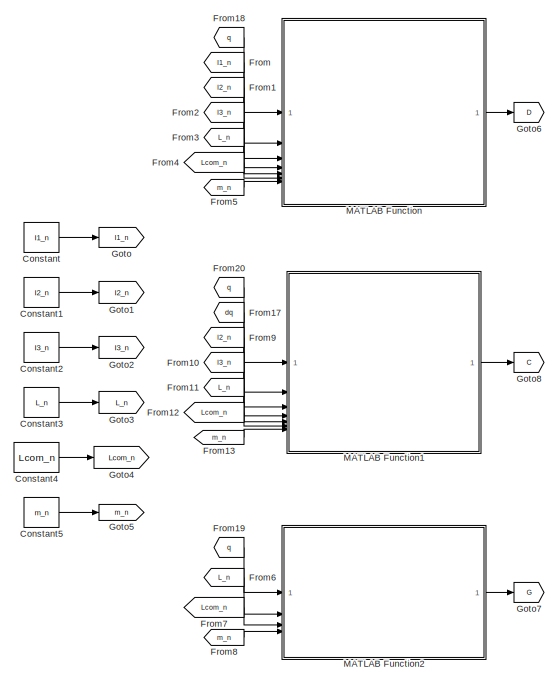
[diagram: root canvas - part 1/3, left side, full height]
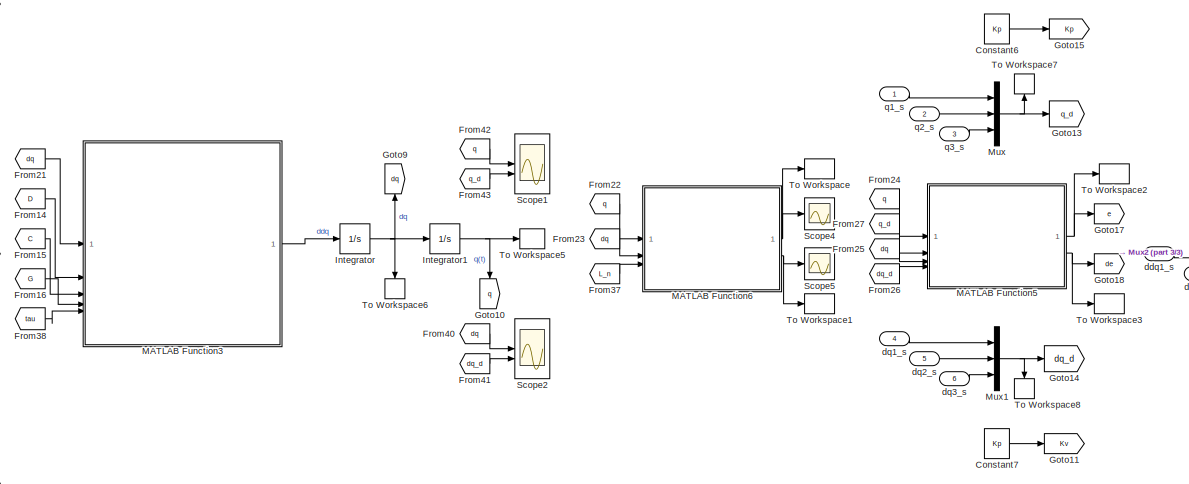
[diagram: root canvas - part 2/3, central region]
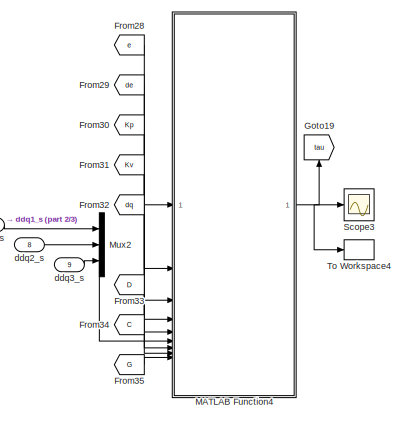
[diagram: root canvas - part 3/3, middle right region]
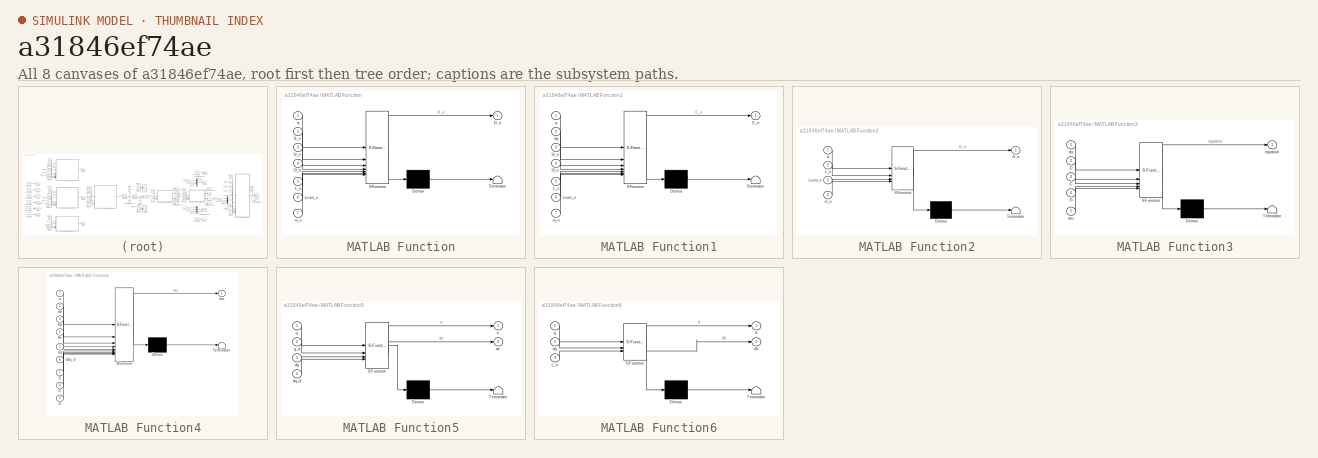
[diagram: thumbnail index - all 8 canvases of the model, root first then tree order]
MODEL slx_a31846ef74ae
KIND model
CONFIG AbsTol = auto
CONFIG EnableMultiTasking = off
CONFIG FixedStep = t / k
CONFIG MaxStep = auto
CONFIG MinStep = auto
CONFIG RelTol = auto
CONFIG SampleTimeConstraint = Unconstrained
CONFIG SolverName = VariableStepAuto
CONFIG StartTime = 0.0
CONFIG StopTime = t
BLOCK [Constant] Constant
  Value = I1_n
BLOCK [Constant] Constant1
  Value = I2_n
BLOCK [Constant] Constant2
  Value = I3_n
BLOCK [Constant] Constant3
  Value = L_n
BLOCK [Constant] Constant4
  Value = Lcom_n
BLOCK [Constant] Constant5
  Value = m_n
BLOCK [Constant] Constant6
  Value = Kp
BLOCK [Constant] Constant7
  Value = Kp
BLOCK [From] From
  GotoTag = I1_n
BLOCK [From] From1
  GotoTag = I2_n
BLOCK [From] From10
  GotoTag = I3_n
BLOCK [From] From11
  GotoTag = L_n
BLOCK [From] From12
  GotoTag = Lcom_n
BLOCK [From] From13
  GotoTag = m_n
BLOCK [From] From14
  GotoTag = D
BLOCK [From] From15
  GotoTag = C
BLOCK [From] From16
  GotoTag = G
BLOCK [From] From17
  GotoTag = dq
BLOCK [From] From18
  GotoTag = q
BLOCK [From] From19
  GotoTag = q
BLOCK [From] From2
  GotoTag = I3_n
BLOCK [From] From20
  GotoTag = q
BLOCK [From] From21
  GotoTag = dq
BLOCK [From] From22
  GotoTag = q
BLOCK [From] From23
  GotoTag = dq
BLOCK [From] From24
  GotoTag = q
BLOCK [From] From25
  GotoTag = dq
BLOCK [From] From26
  GotoTag = dq_d
BLOCK [From] From27
  GotoTag = q_d
BLOCK [From] From28
  GotoTag = e
BLOCK [From] From29
  GotoTag = de
BLOCK [From] From3
  GotoTag = L_n
BLOCK [From] From30
  GotoTag = Kp
BLOCK [From] From31
  GotoTag = Kv
BLOCK [From] From32
  GotoTag = dq
BLOCK [From] From33
  GotoTag = D
BLOCK [From] From34
  GotoTag = C
BLOCK [From] From35
  GotoTag = G
BLOCK [From] From37
  GotoTag = L_n
BLOCK [From] From38
  GotoTag = tau
BLOCK [From] From4
  GotoTag = Lcom_n
BLOCK [From] From40
  GotoTag = dq
BLOCK [From] From41
  GotoTag = dq_d
BLOCK [From] From42
  GotoTag = q
BLOCK [From] From43
  GotoTag = q_d
BLOCK [From] From5
  GotoTag = m_n
BLOCK [From] From6
  GotoTag = L_n
BLOCK [From] From7
  GotoTag = Lcom_n
BLOCK [From] From8
  GotoTag = m_n
BLOCK [From] From9
  GotoTag = I2_n
BLOCK [Goto] Goto
  GotoTag = I1_n
BLOCK [Goto] Goto1
  GotoTag = I2_n
BLOCK [Goto] Goto10
  GotoTag = q
  NameLocation = left
BLOCK [Goto] Goto11
  GotoTag = Kv
BLOCK [Goto] Goto13
  GotoTag = q_d
BLOCK [Goto] Goto14
  GotoTag = dq_d
BLOCK [Goto] Goto15
  GotoTag = Kp
BLOCK [Goto] Goto17
  GotoTag = e
BLOCK [Goto] Goto18
  GotoTag = de
BLOCK [Goto] Goto19
  GotoTag = tau
  NameLocation = right
BLOCK [Goto] Goto2
  GotoTag = I3_n
BLOCK [Goto] Goto3
  GotoTag = L_n
BLOCK [Goto] Goto4
  GotoTag = Lcom_n
BLOCK [Goto] Goto5
  GotoTag = m_n
BLOCK [Goto] Goto6
  GotoTag = D
BLOCK [Goto] Goto7
  GotoTag = G
BLOCK [Goto] Goto8
  GotoTag = C
BLOCK [Goto] Goto9
  GotoTag = dq
  NameLocation = right
BLOCK [Integrator] Integrator
  InitialCondition = dq_0
BLOCK [Integrator] Integrator1
  InitialCondition = q_0
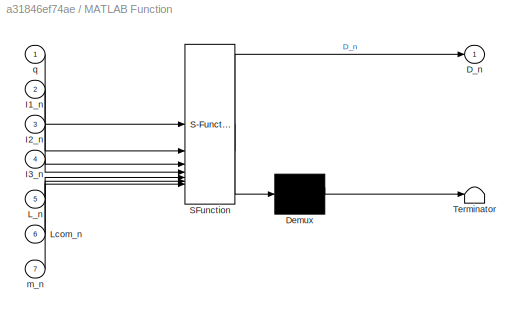
BLOCK [SubSystem] MATLAB Function
  ErrorFcn = Stateflow.Translate.translate
  PermitHierarchicalResolution = ExplicitOnly
  SFBlockType = MATLAB Function
  TreatAsAtomicUnit = on
BLOCK [Demux] MATLAB Function/ Demux 
  Outputs = 1
BLOCK [S-Function] MATLAB Function/ SFunction 
  EnableBusSupport = on
  FunctionName = sf_sfun
  PortCounts = [7 2]
  SFcnIsStateOwnerBlock = off
  SFunctionDeploymentMode = off
  Tag = Stateflow S-Function 2
BLOCK [Terminator] MATLAB Function/ Terminator 
BLOCK [Outport] MATLAB Function/D_n
BLOCK [Inport] MATLAB Function/I1_n
  Port = 2
BLOCK [Inport] MATLAB Function/I2_n
  Port = 3
BLOCK [Inport] MATLAB Function/I3_n
  Port = 4
BLOCK [Inport] MATLAB Function/L_n
  Port = 5
BLOCK [Inport] MATLAB Function/Lcom_n
  Port = 6
BLOCK [Inport] MATLAB Function/m_n
  Port = 7
BLOCK [Inport] MATLAB Function/q
BLOCK [SubSystem] MATLAB Function1
  ErrorFcn = Stateflow.Translate.translate
  PermitHierarchicalResolution = ExplicitOnly
  SFBlockType = MATLAB Function
  TreatAsAtomicUnit = on
BLOCK [Demux] MATLAB Function1/ Demux 
  Outputs = 1
BLOCK [S-Function] MATLAB Function1/ SFunction 
  EnableBusSupport = on
  FunctionName = sf_sfun
  PortCounts = [7 2]
  SFcnIsStateOwnerBlock = off
  SFunctionDeploymentMode = off
  Tag = Stateflow S-Function 1
BLOCK [Terminator] MATLAB Function1/ Terminator 
BLOCK [Outport] MATLAB Function1/C_n
BLOCK [Inport] MATLAB Function1/I2_n
  Port = 3
BLOCK [Inport] MATLAB Function1/I3_n
  Port = 4
BLOCK [Inport] MATLAB Function1/L_n
  Port = 5
BLOCK [Inport] MATLAB Function1/Lcom_n
  Port = 6
BLOCK [Inport] MATLAB Function1/dq
  Port = 2
BLOCK [Inport] MATLAB Function1/m_n
  Port = 7
BLOCK [Inport] MATLAB Function1/q
BLOCK [SubSystem] MATLAB Function2
  ErrorFcn = Stateflow.Translate.translate
  PermitHierarchicalResolution = ExplicitOnly
  SFBlockType = MATLAB Function
  TreatAsAtomicUnit = on
BLOCK [Demux] MATLAB Function2/ Demux 
  Outputs = 1
BLOCK [S-Function] MATLAB Function2/ SFunction 
  EnableBusSupport = on
  FunctionName = sf_sfun
  PortCounts = [4 2]
  SFcnIsStateOwnerBlock = off
  SFunctionDeploymentMode = off
  Tag = Stateflow S-Function 3
BLOCK [Terminator] MATLAB Function2/ Terminator 
BLOCK [Outport] MATLAB Function2/G_n
BLOCK [Inport] MATLAB Function2/L_n
  Port = 2
BLOCK [Inport] MATLAB Function2/Lcom_n
  Port = 3
BLOCK [Inport] MATLAB Function2/m_n
  Port = 4
BLOCK [Inport] MATLAB Function2/q
BLOCK [SubSystem] MATLAB Function3
  ErrorFcn = Stateflow.Translate.translate
  PermitHierarchicalResolution = ExplicitOnly
  SFBlockType = MATLAB Function
  TreatAsAtomicUnit = on
BLOCK [Demux] MATLAB Function3/ Demux 
  Outputs = 1
BLOCK [S-Function] MATLAB Function3/ SFunction 
  EnableBusSupport = on
  FunctionName = sf_sfun
  PortCounts = [5 2]
  SFcnIsStateOwnerBlock = off
  SFunctionDeploymentMode = off
  Tag = Stateflow S-Function 4
BLOCK [Terminator] MATLAB Function3/ Terminator 
BLOCK [Inport] MATLAB Function3/C
  Port = 3
BLOCK [Inport] MATLAB Function3/D
  Port = 2
BLOCK [Inport] MATLAB Function3/G
  Port = 4
BLOCK [Inport] MATLAB Function3/dq
BLOCK [Outport] MATLAB Function3/equation
BLOCK [Inport] MATLAB Function3/tau
  Port = 5
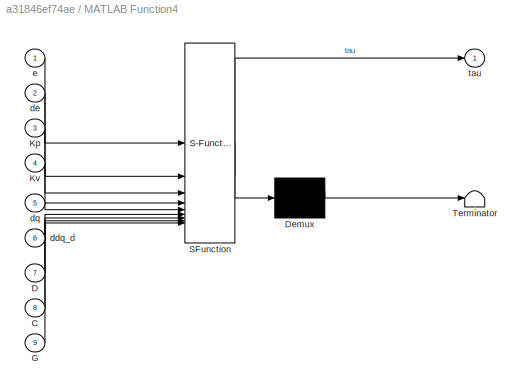
BLOCK [SubSystem] MATLAB Function4
  ErrorFcn = Stateflow.Translate.translate
  PermitHierarchicalResolution = ExplicitOnly
  SFBlockType = MATLAB Function
  TreatAsAtomicUnit = on
BLOCK [Demux] MATLAB Function4/ Demux 
  Outputs = 1
BLOCK [S-Function] MATLAB Function4/ SFunction 
  EnableBusSupport = on
  FunctionName = sf_sfun
  PortCounts = [9 2]
  SFcnIsStateOwnerBlock = off
  SFunctionDeploymentMode = off
  Tag = Stateflow S-Function 5
BLOCK [Terminator] MATLAB Function4/ Terminator 
BLOCK [Inport] MATLAB Function4/C
  Port = 8
BLOCK [Inport] MATLAB Function4/D
  Port = 7
BLOCK [Inport] MATLAB Function4/G
  Port = 9
BLOCK [Inport] MATLAB Function4/Kp
  Port = 3
BLOCK [Inport] MATLAB Function4/Kv
  Port = 4
BLOCK [Inport] MATLAB Function4/ddq_d
  Port = 6
BLOCK [Inport] MATLAB Function4/de
  Port = 2
BLOCK [Inport] MATLAB Function4/dq
  Port = 5
BLOCK [Inport] MATLAB Function4/e
BLOCK [Outport] MATLAB Function4/tau
BLOCK [SubSystem] MATLAB Function5
  ErrorFcn = Stateflow.Translate.translate
  PermitHierarchicalResolution = ExplicitOnly
  SFBlockType = MATLAB Function
  TreatAsAtomicUnit = on
BLOCK [Demux] MATLAB Function5/ Demux 
  Outputs = 1
BLOCK [S-Function] MATLAB Function5/ SFunction 
  EnableBusSupport = on
  FunctionName = sf_sfun
  PortCounts = [4 3]
  SFcnIsStateOwnerBlock = off
  SFunctionDeploymentMode = off
  Tag = Stateflow S-Function 6
BLOCK [Terminator] MATLAB Function5/ Terminator 
BLOCK [Outport] MATLAB Function5/de
  Port = 2
BLOCK [Inport] MATLAB Function5/dq
  Port = 3
BLOCK [Inport] MATLAB Function5/dq_d
  Port = 4
BLOCK [Outport] MATLAB Function5/e
BLOCK [Inport] MATLAB Function5/q
BLOCK [Inport] MATLAB Function5/q_d
  Port = 2
BLOCK [SubSystem] MATLAB Function6
  ErrorFcn = Stateflow.Translate.translate
  PermitHierarchicalResolution = ExplicitOnly
  SFBlockType = MATLAB Function
  TreatAsAtomicUnit = on
BLOCK [Demux] MATLAB Function6/ Demux 
  Outputs = 1
BLOCK [S-Function] MATLAB Function6/ SFunction 
  EnableBusSupport = on
  FunctionName = sf_sfun
  PortCounts = [3 3]
  SFcnIsStateOwnerBlock = off
  SFunctionDeploymentMode = off
  Tag = Stateflow S-Function 7
BLOCK [Terminator] MATLAB Function6/ Terminator 
BLOCK [Inport] MATLAB Function6/L_n
  Port = 3
BLOCK [Outport] MATLAB Function6/X
BLOCK [Outport] MATLAB Function6/dX
  Port = 2
BLOCK [Inport] MATLAB Function6/dq
  Port = 2
BLOCK [Inport] MATLAB Function6/q
BLOCK [Mux] Mux
  DisplayOption = bar
  Inputs = 3
BLOCK [Mux] Mux1
  DisplayOption = bar
  Inputs = 3
BLOCK [Mux] Mux2
  DisplayOption = bar
  Inputs = 3
BLOCK [Scope] Scope1
  Floating = off
  NumInputPorts = 2
  ScopeSpecificationString = Simulink.scopes.TimeScopeBlockCfg('CurrentConfiguration', extmgr.ConfigurationSet(extmgr.Configuration('Core','General UI',true,'FigureColor',[1 1 1]),extmgr.Configuration('Core','Source UI',true),extmgr.Configuration('Sources','WiredSimulink',true,'DataLoggingVariableName','ScopeData1'),extmgr.Configuration('Visuals','Time Domain',true,'SerializedDisplays',{struct('MinYLimReal','-3.11518','MaxYLi...<+2101ch>
BLOCK [Scope] Scope2
  Floating = off
  NumInputPorts = 2
  ScopeSpecificationString = Simulink.scopes.TimeScopeBlockCfg('CurrentConfiguration', extmgr.ConfigurationSet(extmgr.Configuration('Core','General UI',true,'FigureColor',[1 1 1]),extmgr.Configuration('Core','Source UI',true),extmgr.Configuration('Sources','WiredSimulink',true,'DataLoggingVariableName','ScopeData2'),extmgr.Configuration('Visuals','Time Domain',true,'SerializedDisplays',{struct('MinYLimReal','-2.9623','MaxYLim...<+2075ch>
BLOCK [Scope] Scope3
  Floating = off
  NumInputPorts = 1
  ScopeSpecificationString = Simulink.scopes.TimeScopeBlockCfg('CurrentConfiguration', extmgr.ConfigurationSet(extmgr.Configuration('Core','General UI',true,'FigureColor',[1 1 1]),extmgr.Configuration('Core','Source UI',true),extmgr.Configuration('Sources','WiredSimulink',true,'DataLoggingVariableName','ScopeData3'),extmgr.Configuration('Visuals','Time Domain',true,'SerializedDisplays',{struct('MinYLimReal','-386.99595','MaxY...<+1845ch>
BLOCK [Scope] Scope4
  Floating = off
  NumInputPorts = 1
  ScopeSpecificationString = Simulink.scopes.TimeScopeBlockCfg('CurrentConfiguration', extmgr.ConfigurationSet(extmgr.Configuration('Core','General UI',true,'FigureColor',[1 1 1]),extmgr.Configuration('Core','Source UI',true),extmgr.Configuration('Sources','WiredSimulink',true,'DataLoggingVariableName','ScopeData1'),extmgr.Configuration('Visuals','Time Domain',true,'SerializedDisplays',{struct('MinYLimReal','-0.74309','MaxYLi...<+1851ch>
BLOCK [Scope] Scope5
  Floating = off
  NumInputPorts = 1
  ScopeSpecificationString = Simulink.scopes.TimeScopeBlockCfg('CurrentConfiguration', extmgr.ConfigurationSet(extmgr.Configuration('Core','General UI',true,'FigureColor',[1 1 1]),extmgr.Configuration('Core','Source UI',true),extmgr.Configuration('Sources','WiredSimulink',true,'DataLoggingVariableName','ScopeData2'),extmgr.Configuration('Visuals','Time Domain',true,'SerializedDisplays',{struct('MinYLimReal','-0.60666','MaxYLi...<+1857ch>
BLOCK [ToWorkspace] To Workspace
  FixptAsFi = on
  MaxDataPoints = inf
  SampleTime = -1
  SaveFormat = Timeseries
  VariableName = X
BLOCK [ToWorkspace] To Workspace1
  FixptAsFi = on
  MaxDataPoints = inf
  SampleTime = -1
  SaveFormat = Timeseries
  VariableName = dX
BLOCK [ToWorkspace] To Workspace2
  FixptAsFi = on
  MaxDataPoints = inf
  SampleTime = -1
  SaveFormat = Timeseries
  VariableName = Error
BLOCK [ToWorkspace] To Workspace3
  FixptAsFi = on
  MaxDataPoints = inf
  SampleTime = -1
  SaveFormat = Timeseries
  VariableName = dError
BLOCK [ToWorkspace] To Workspace4
  FixptAsFi = on
  MaxDataPoints = inf
  SampleTime = -1
  SaveFormat = Timeseries
  VariableName = tau
BLOCK [ToWorkspace] To Workspace5
  FixptAsFi = on
  MaxDataPoints = inf
  SampleTime = -1
  SaveFormat = Timeseries
  VariableName = q
BLOCK [ToWorkspace] To Workspace6
  FixptAsFi = on
  MaxDataPoints = inf
  NameLocation = left
  SampleTime = -1
  SaveFormat = Timeseries
  VariableName = dq
BLOCK [ToWorkspace] To Workspace7
  FixptAsFi = on
  MaxDataPoints = inf
  NameLocation = right
  SampleTime = -1
  SaveFormat = Timeseries
  VariableName = q_d
BLOCK [ToWorkspace] To Workspace8
  FixptAsFi = on
  MaxDataPoints = inf
  NameLocation = left
  SampleTime = -1
  SaveFormat = Timeseries
  VariableName = dq_d
BLOCK [Inport] ddq1_s
  Port = 7
BLOCK [Inport] ddq2_s
  Port = 8
BLOCK [Inport] ddq3_s
  Port = 9
BLOCK [Inport] dq1_s
  Port = 4
BLOCK [Inport] dq2_s
  Port = 5
BLOCK [Inport] dq3_s
  Port = 6
BLOCK [Inport] q1_s
BLOCK [Inport] q2_s
  Port = 2
BLOCK [Inport] q3_s
  Port = 3
LINE Constant1:1 -> Goto1:1
LINE Constant2:1 -> Goto2:1
LINE Constant3:1 -> Goto3:1
LINE Constant4:1 -> Goto4:1
LINE Constant5:1 -> Goto5:1
LINE Constant6:1 -> Goto15:1
LINE Constant7:1 -> Goto11:1
LINE Constant:1 -> Goto:1
LINE From10:1 -> MATLAB Function1:4
LINE From11:1 -> MATLAB Function1:5
LINE From12:1 -> MATLAB Function1:6
LINE From13:1 -> MATLAB Function1:7
LINE From14:1 -> MATLAB Function3:2
LINE From15:1 -> MATLAB Function3:3
LINE From16:1 -> MATLAB Function3:4
LINE From17:1 -> MATLAB Function1:2
LINE From18:1 -> MATLAB Function:1
LINE From19:1 -> MATLAB Function2:1
LINE From1:1 -> MATLAB Function:3
LINE From20:1 -> MATLAB Function1:1
LINE From21:1 -> MATLAB Function3:1
LINE From22:1 -> MATLAB Function6:1
LINE From23:1 -> MATLAB Function6:2
LINE From24:1 -> MATLAB Function5:1
LINE From25:1 -> MATLAB Function5:3
LINE From26:1 -> MATLAB Function5:4
LINE From27:1 -> MATLAB Function5:2
LINE From28:1 -> MATLAB Function4:1
LINE From29:1 -> MATLAB Function4:2
LINE From2:1 -> MATLAB Function:4
LINE From30:1 -> MATLAB Function4:3
LINE From31:1 -> MATLAB Function4:4
LINE From32:1 -> MATLAB Function4:5
LINE From33:1 -> MATLAB Function4:7
LINE From34:1 -> MATLAB Function4:8
LINE From35:1 -> MATLAB Function4:9
LINE From37:1 -> MATLAB Function6:3
LINE From38:1 -> MATLAB Function3:5
LINE From3:1 -> MATLAB Function:5
LINE From40:1 -> Scope2:1
LINE From41:1 -> Scope2:2
LINE From42:1 -> Scope1:1
LINE From43:1 -> Scope1:2
LINE From4:1 -> MATLAB Function:6
LINE From5:1 -> MATLAB Function:7
LINE From6:1 -> MATLAB Function2:2
LINE From7:1 -> MATLAB Function2:3
LINE From8:1 -> MATLAB Function2:4
LINE From9:1 -> MATLAB Function1:3
LINE From:1 -> MATLAB Function:2
NET Integrator1:1 -> Goto10:1, To Workspace5:1
NET Integrator:1 -> Goto9:1, Integrator1:1, To Workspace6:1
LINE MATLAB Function1:1 -> Goto8:1
LINE MATLAB Function2:1 -> Goto7:1
LINE MATLAB Function3:1 -> Integrator:1
NET MATLAB Function4:1 -> Goto19:1, Scope3:1, To Workspace4:1
NET MATLAB Function5:1 -> Goto17:1, To Workspace2:1
NET MATLAB Function5:2 -> Goto18:1, To Workspace3:1
NET MATLAB Function6:1 -> Scope4:1, To Workspace:1
NET MATLAB Function6:2 -> Scope5:1, To Workspace1:1
LINE MATLAB Function:1 -> Goto6:1
NET Mux1:1 -> Goto14:1, To Workspace8:1
LINE Mux2:1 -> MATLAB Function4:6
NET Mux:1 -> Goto13:1, To Workspace7:1
LINE ddq1_s:1 -> Mux2:1
LINE ddq2_s:1 -> Mux2:2
LINE ddq3_s:1 -> Mux2:3
LINE dq1_s:1 -> Mux1:1
LINE dq2_s:1 -> Mux1:2
LINE dq3_s:1 -> Mux1:3
LINE q1_s:1 -> Mux:1
LINE q2_s:1 -> Mux:2
LINE q3_s:1 -> Mux:3
note: NET lines group one-source signal fan-out (src -> all destinations, sorted); 1:1 wires keep LINE
CHART MATLAB Function1 states=1 transitions=1
  STATE_LABEL 'eML_blk_kernel()'
  STATE_LABEL 'SCRIPT:\nfunction C_n = matrixC(q, dq, I2_n, I3_n, L_n, Lcom_n, m_n)\n\n%% Evaluate anonymous function\nC_n = functionC(I2_n(1, 1), ...\n                I3_n(1, 1), ...\n                I2_n(1, 2), ...\n                I3_n(1, 2), ...\n                I2_n(1, 3), ...\n                I3_n(1, 3), ...\n                I2_n(2, 2), ...\n                I3_n(2, 2), ...\n                I2_n(2, 3), ...\n            ...<+185ch>'
CHART MATLAB Function states=1 transitions=1
  STATE_LABEL 'eML_blk_kernel()'
  STATE_LABEL 'SCRIPT:\nfunction D_n = matrixD(q, I1_n, I2_n, I3_n, L_n, Lcom_n, m_n)\n\n%% Evaluate anonymous function\nD_n = functionD(I2_n(1, 1), ...\n                I3_n(1, 1), ...\n                I2_n(1, 2), ...\n                I3_n(1, 2), ...\n                I2_n(1, 3), ...\n                I3_n(1, 3), ...\n                I2_n(2, 2), ...\n                I3_n(2, 2), ...\n                I2_n(2, 3), ...\n          ...<+218ch>'
CHART MATLAB Function2 states=1 transitions=1
  STATE_LABEL 'eML_blk_kernel()'
  STATE_LABEL 'SCRIPT:\nfunction G_n = matrixG(q, L_n, Lcom_n, m_n)\n\n%% Evaluate anonymous function\nG_n = functionG(L_n(2), Lcom_n(2), Lcom_n(3), m_n(2), m_n(3), q(2), q(3));\n'
CHART MATLAB Function3 states=1 transitions=1
  STATE_LABEL 'eML_blk_kernel()'
  STATE_LABEL 'SCRIPT:\nfunction equation = differential(dq, D, C, G, tau)\n\nequation = pinv(D) * (tau - C * dq - G);\n'
CHART MATLAB Function4 states=1 transitions=1
  STATE_LABEL 'eML_blk_kernel()'
  STATE_LABEL 'SCRIPT:\nfunction tau = control(e, de, Kp, Kv, dq, ddq_d, D, C, G)\n\n%% Control function\ntau = D * ((Kp * e) + (Kv * de) + ddq_d) + (C * dq) + G;'
CHART MATLAB Function5 states=1 transitions=1
  STATE_LABEL 'eML_blk_kernel()'
  STATE_LABEL 'SCRIPT:\nfunction [e, de] = error(q, q_d, dq, dq_d)\n\n%% Error calculation\ne = q_d - q;\nde = dq_d - dq;'
CHART MATLAB Function6 states=1 transitions=1
  STATE_LABEL 'eML_blk_kernel()'
  STATE_LABEL 'SCRIPT:\nfunction [X, dX] = forwardK(q, dq, L_n)\n\n%% Parámetros Denavit - Hartenberg\n\nDH = denavitHartenberg(q, L_n);\n\n%% Cinemática Directa\n\n% Parámetros: DH y m (marcos de referencia por analizar)\nH = forwardKinematicsDH(DH, 3 + 1);\n\n% Transforma al vector Axis - Angle\nX = axisAngle(H);\n\n%% Cinemática Diferencial\n\n% Matriz Jacobiana Geométrica\nJ = jacobianMatrix(DH, q);\n\n% Velocidad en el efector...<+19ch>'
CHART  states=0 transitions=0
CHART  states=0 transitions=0
CHART  states=0 transitions=0
CHART  states=0 transitions=0
CHART  states=0 transitions=0
CHART  states=0 transitions=0
CHART  states=0 transitions=0
